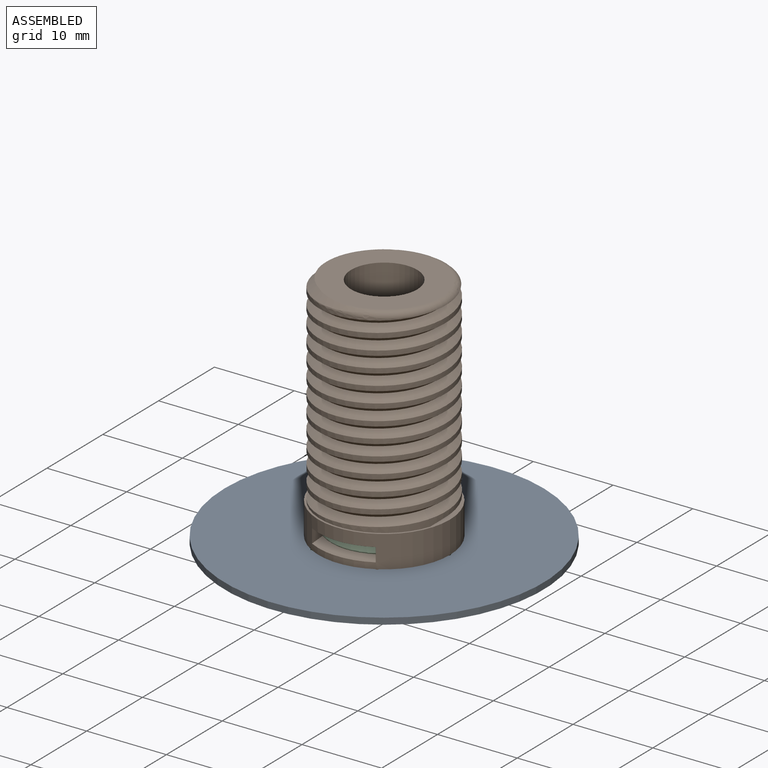
[diagram: assembled view]
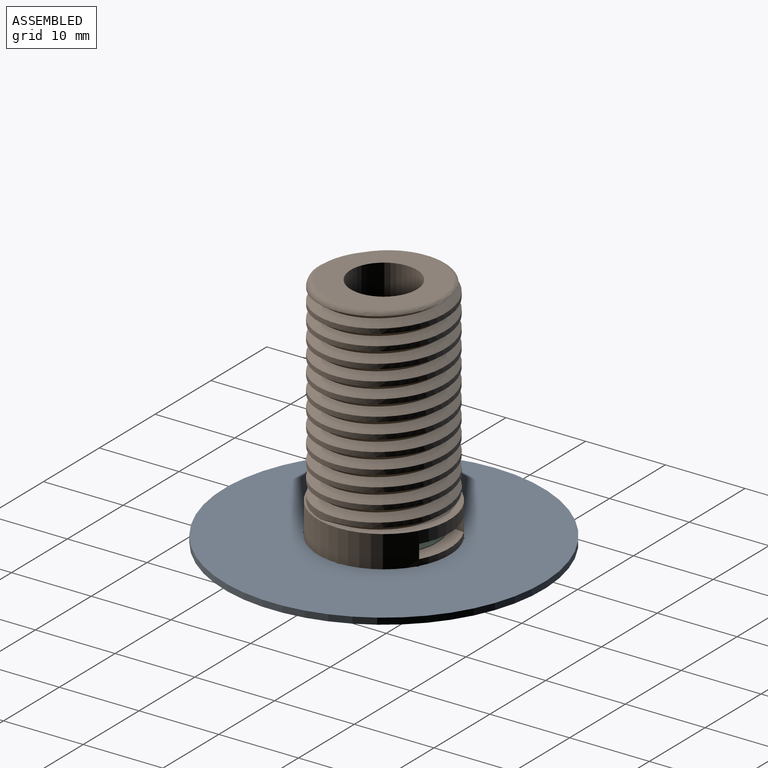
[diagram: assembled view, second angle]
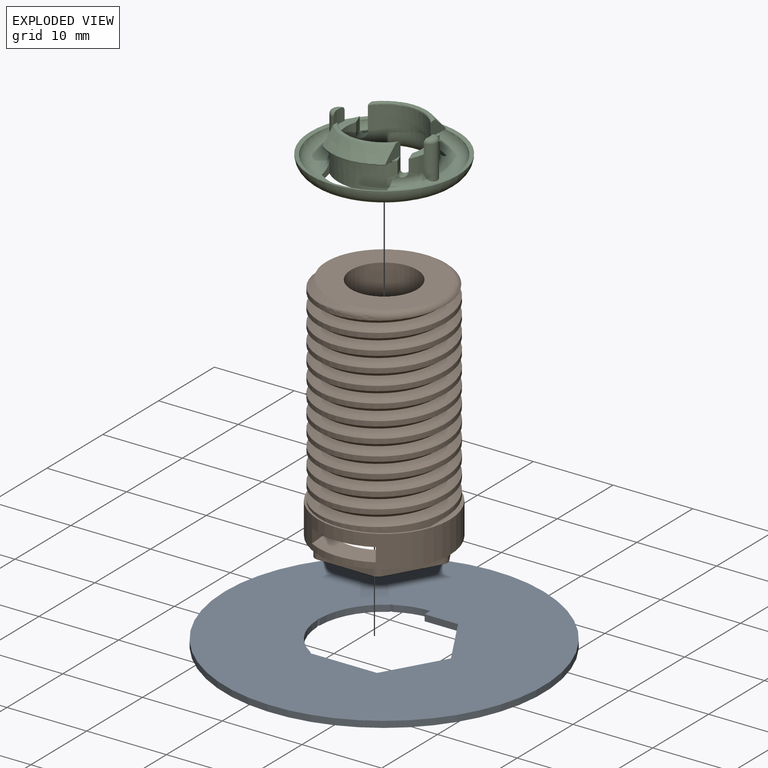
[diagram: exploded view]
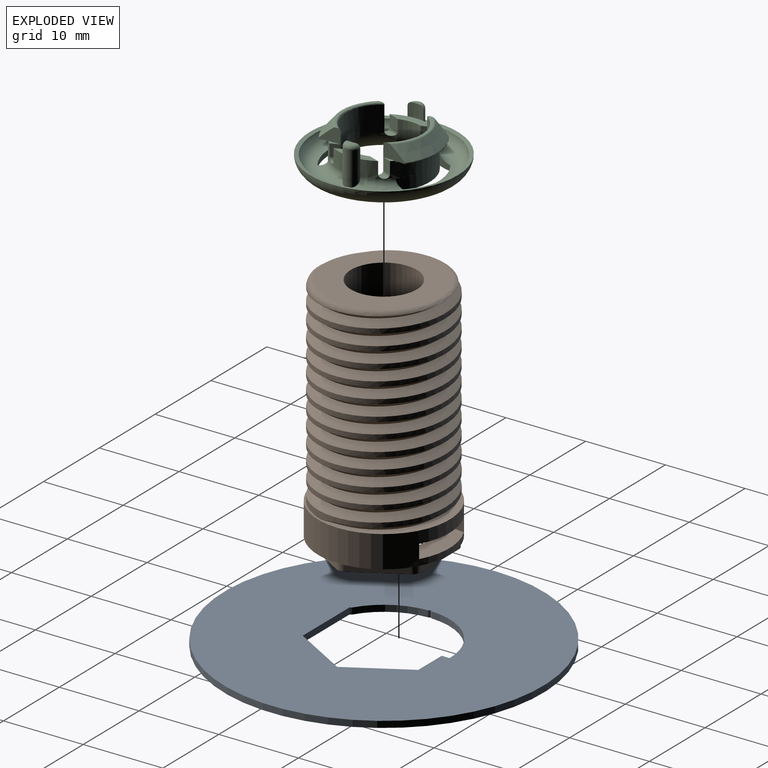
[diagram: exploded view, second angle]
ASSEMBLY  parts=3 mates=2
PART A: 16 faces, bbox 40x40x0.8 mm
  f0: plane 8.37x0.8mm, normal (0,1,0), area 6.7mm2, adj f1,f12,f14,f15
  f1: plane 7.25x4.19mm, normal (-0.87,0.5,0), area 6.7mm2, adj f0,f2,f14,f15
  f2: plane 7.25x4.19mm, normal (-0.87,-0.5,0), area 6.7mm2, adj f1,f3,f14,f15
  f3: plane 4.19x0.8mm, normal (0,-1,0), area 3.3mm2, adj f2,f4,f14,f15
  f4: plane 1x0.8mm, normal (-1,0,0), area 0.8mm2, adj f3,f5,f14,f15
  f5: cylinder r=8.25mm len=3.94mm, axis (0,0,1), area 3.3mm2, adj f4,f6,f14,f15
  f6: plane 0.8x0.25mm, normal (0,-1,0), area 0.2mm2, adj f5,f7,f14,f15
  f7: plane 0.8x0.22mm, normal (0.87,-0.5,0), area 0.2mm2, adj f6,f8,f14,f15
  f8: cylinder r=8.25mm len=6.82mm, axis (0,0,1), area 6.6mm2, adj f7,f9,f14,f15
  f9: plane 0.8x0.22mm, normal (0.87,-0.5,0), area 0.2mm2, adj f8,f10,f14,f15
  f10: plane 0.8x0.22mm, normal (0.87,0.5,0), area 0.2mm2, adj f9,f11,f14,f15
  f11: cylinder r=8.25mm len=6.82mm, axis (0,0,1), area 6.6mm2, adj f10,f12,f14,f15
  f12: plane 0.8x0.22mm, normal (0.87,0.5,0), area 0.2mm2, adj f0,f11,f14,f15
  f13: cylinder r=20mm len=40mm, axis (0,0,1), area 100.5mm2, adj f14,f15
  f14: plane 40x40mm, normal (0,0,-1), area 1061.3mm2, adj f0,f1,f2,f3,f4,f5,f6,f7
  f15: plane 40x40mm, normal (0,0,1), area 1061.3mm2, adj f0,f1,f2,f3,f4,f5,f6,f7
PART B: 48 faces, bbox 17.9x19.1x31.4 mm
  f0: cylinder r=8.25mm len=16.5mm, axis (0,0,-1), area 178.4mm2, adj f3,f11,f12,f13,f17,f18,f19,f22
  f1: plane 15.86x14mm, normal (0,0,-1), area 62.5mm2, adj f6,f8,f9,f10,f14,f15,f16,f20
  f2: cylinder r=8mm len=24.2mm, axis (0,0,1), area 335.8mm2, adj f25,f26,f27,f46,f47
  f3: plane 16.5x16.5mm, normal (0,0,-1), area 44.4mm2, adj f0,f9,f10,f15,f16,f21,f23,f28
  f4: cylinder r=4.15mm len=26mm, axis (0,0,1), area 678mm2, adj f5,f7
  f5: plane 14.49x14.49mm, normal (0,0,1), area 108.1mm2, adj f4,f26,f27,f46
  f6: cylinder r=1mm len=3.5mm, axis (0,0,-1), area 8mm2, adj f1,f33,f35,f41
  f7: plane 12.32x10.5mm, normal (0,0,-1), area 34.7mm2, adj f4,f38,f39,f40,f41,f42,f43,f44
  f8: cylinder r=5.75mm len=11.08mm, axis (0,0,1), area 39mm2, adj f1,f12,f13,f22,f30,f35,f45
  f9: plane 6.93x1mm, normal (0,1,0), area 6.9mm2, adj f1,f3,f28,f36
  f10: plane 6x3.46mm, normal (0.87,0.5,0), area 6.9mm2, adj f1,f3,f36,f37
  f11: plane 8x4.12mm, normal (0,0,-1), area 21.4mm2, adj f0,f12,f22,f45
  f12: plane 3.43x2.08mm, normal (-1,0,0), area 5mm2, adj f0,f8,f11,f13
  f13: cone r=6.84mm half-angle=84.7deg, axis (0,0,-1), area 22.1mm2, adj f0,f8,f12,f22
  f14: cylinder r=5.75mm len=11.08mm, axis (0,0,1), area 39mm2, adj f1,f18,f19,f24,f31,f33,f38
  f15: plane 6.93x1mm, normal (0,-1,0), area 6.9mm2, adj f1,f3,f32,f34
  f16: plane 6x3.46mm, normal (0.87,-0.5,0), area 6.9mm2, adj f1,f3,f34,f37
  f17: plane 8x4.12mm, normal (0,0,-1), area 21.4mm2, adj f0,f18,f24,f38
  f18: plane 3.43x2.08mm, normal (-1,0,0), area 5mm2, adj f0,f14,f17,f19
  f19: cone r=6.84mm half-angle=84.7deg, axis (0,0,-1), area 22.1mm2, adj f0,f14,f18,f24
  f20: cylinder r=1mm len=3.5mm, axis (0,0,-1), area 8mm2, adj f1,f30,f31,f42
  f21: plane 6x3.46mm, normal (-0.87,0.5,0), area 6.9mm2, adj f1,f3,f28,f29
  f22: plane 3.43x2.08mm, normal (1,0,0), area 5mm2, adj f0,f8,f11,f13
  f23: plane 6x3.46mm, normal (-0.87,-0.5,0), area 6.9mm2, adj f1,f3,f29,f32
  f24: plane 3.43x2.08mm, normal (1,0,0), area 5mm2, adj f0,f14,f17,f19
  f25: bspline ~13.17x4.5mm, area 0.9mm2, adj f2,f27,f47
  f26: bspline ~26.37x18.48mm, area 715.3mm2, adj f2,f5,f27,f46,f47
  f27: bspline ~26.03x18.48mm, area 712.5mm2, adj f2,f5,f25,f26,f46,f47
  f28: cylinder r=1mm len=1mm, axis (0,0,-1), area 1mm2, adj f1,f3,f9,f21
  f29: cylinder r=1mm len=1mm, axis (0,0,-1), area 1mm2, adj f1,f3,f21,f23
  f30: cylinder r=1mm len=3.5mm, axis (0,0,-1), area 3mm2, adj f1,f8,f20,f44
  f31: cylinder r=1mm len=3.5mm, axis (0,0,-1), area 3mm2, adj f1,f14,f20,f40
  f32: cylinder r=1mm len=1mm, axis (0,0,-1), area 1mm2, adj f1,f3,f15,f23
  f33: cylinder r=1mm len=3.5mm, axis (0,0,-1), area 3mm2, adj f1,f6,f14,f39
  f34: cylinder r=1mm len=1mm, axis (0,0,-1), area 1mm2, adj f1,f3,f15,f16
  f35: cylinder r=1mm len=3.5mm, axis (0,0,-1), area 3mm2, adj f1,f6,f8,f43
  f36: cylinder r=1mm len=1mm, axis (0,0,-1), area 1mm2, adj f1,f3,f9,f10
  f37: cylinder r=1mm len=1mm, axis (0,0,-1), area 1mm2, adj f1,f3,f10,f16
  f38: torus R=5.25mm, axis (0,0,-1), area 11.4mm2, adj f7,f14,f17,f39,f40
  f39: torus R=1.5mm, axis (0,0,-1), area 0.8mm2, adj f7,f33,f38,f41
  f40: torus R=1.5mm, axis (0,0,-1), area 0.8mm2, adj f7,f31,f38,f42
  f41: torus R=0.5mm, axis (0,0,-1), area 1.5mm2, adj f6,f7,f39,f43
  f42: torus R=0.5mm, axis (0,0,-1), area 1.5mm2, adj f7,f20,f40,f44
  f43: torus R=1.5mm, axis (0,0,-1), area 0.8mm2, adj f7,f35,f41,f45
  f44: torus R=1.5mm, axis (0,0,-1), area 0.8mm2, adj f7,f30,f42,f45
  f45: torus R=5.25mm, axis (0,0,-1), area 11.4mm2, adj f7,f8,f11,f43,f44
  f46: torus R=7.2mm, axis (0,0,1), area 28.8mm2, adj f2,f5,f26,f27
  f47: plane 17.12x17.12mm, normal (0,0,1), area 27.7mm2, adj f0,f2,f25,f26,f27
PART C: 79 faces, bbox 20.2x20.2x5.7 mm
  f0: torus R=7.18mm, axis (0,0,-1), area 146.7mm2, adj f3,f10,f20,f23,f24,f25,f27,f39
  f1: torus R=6.75mm, axis (0,0,-1), area 75mm2, adj f2,f6,f9,f18,f27,f28,f33,f37
  f2: torus R=7mm, axis (0,0,1), area 65.4mm2, adj f1,f15,f25,f27,f44,f59,f61,f72
  f3: torus R=6.75mm, axis (0,0,1), area 2mm2, adj f0,f5,f23,f26,f27,f42,f44
  f4: cylinder r=5.75mm len=2.25mm, axis (0,0,1), area 3.9mm2, adj f8,f17,f18,f20,f24
  f5: cylinder r=5.75mm len=9.27mm, axis (0,0,1), area 17.7mm2, adj f3,f7,f14,f16,f18,f31,f34,f35
  f6: cylinder r=4.75mm len=7.94mm, axis (0,0,1), area 30.6mm2, adj f1,f14,f16,f18,f34,f35,f37,f76
  f7: plane 1.52x0.4mm, normal (0,0,1), area 0.3mm2, adj f5,f14,f16
  f8: plane 5.59x1.22mm, normal (0,0,1), area 4.4mm2, adj f4,f9,f17,f21,f46,f55
  f9: cylinder r=4.75mm len=3.09mm, axis (0,0,1), area 5.1mm2, adj f1,f8,f17,f18,f55,f56
  f10: cone r=9.25mm half-angle=78.7deg, axis (0,0,1), area 28.3mm2, adj f0,f15
  f11: cone r=6.84mm half-angle=84.7deg, axis (0,0,-1), area 5.3mm2, adj f14,f29,f34,f78
  f12: cone r=5.25mm half-angle=40.6deg, axis (0,0,-1), area 18.2mm2, adj f14,f29,f34,f75
  f13: plane 7.84x2.14mm, normal (0,0,1), area 1.9mm2, adj f14,f34,f75,f76
  f14: plane 2.92x2.14mm, normal (1,0,0), area 3.3mm2, adj f5,f6,f7,f11,f12,f13,f29,f75
  f15: torus R=7.25mm, axis (0,0,-1), area 136.2mm2, adj f2,f10
  f16: plane 1.5x1.11mm, normal (0.94,-0.34,0), area 1.8mm2, adj f5,f6,f7,f18
  f17: plane 1.5x1.36mm, normal (-0.94,0.34,0), area 2.2mm2, adj f4,f8,f9,f18
  f18: cylinder r=0.5mm len=2.36mm, axis (-0.34,-0.94,0), area 2mm2, adj f1,f4,f5,f6,f9,f16,f17,f23
  f19: plane 0.99x0.43mm, normal (0,0,1), area 0.3mm2, adj f21,f22
  f20: cylinder r=1mm len=4.29mm, axis (0,0,1), area 12.7mm2, adj f0,f4,f21,f22,f24,f46,f58
  f21: cylinder r=5.75mm len=2mm, axis (0,0,1), area 3.2mm2, adj f8,f19,f20,f22
  f22: torus R=0.5mm, axis (0,0,1), area 1.9mm2, adj f19,f20,f21
  f23: bspline ~0.73x0.5mm, area 0.1mm2, adj f0,f3,f18,f24
  f24: torus R=6.75mm, axis (0,0,1), area 2mm2, adj f0,f4,f20,f23
  f25: cylinder r=6.84mm len=7.84mm, axis (0,0,1), area 5.5mm2, adj f0,f2,f27,f44
  f26: plane 7.84x1.54mm, normal (0,0,-1), area 0mm2, adj f3,f28
  f27: plane 1.91x1.51mm, normal (-1,0,0), area 1.2mm2, adj f0,f1,f2,f3,f25,f28
  f28: cylinder r=5.75mm len=7.84mm, axis (0,0,1), area 12.9mm2, adj f1,f26,f27,f44
  f29: torus R=6.6mm, axis (0,0,-1), area 2mm2, adj f11,f12,f14,f34
  f30: cylinder r=5.75mm len=2.25mm, axis (0,0,1), area 3.9mm2, adj f32,f36,f37,f39,f43
  f31: plane 1.52x0.4mm, normal (0,0,1), area 0.3mm2, adj f5,f34,f35
  f32: plane 5.59x1.22mm, normal (0,0,1), area 4.4mm2, adj f30,f33,f36,f40,f64,f68
  f33: cylinder r=4.75mm len=3.09mm, axis (0,0,1), area 5.1mm2, adj f1,f32,f36,f37,f68,f69
  f34: plane 2.92x2.14mm, normal (-1,0,0), area 3.3mm2, adj f5,f6,f11,f12,f13,f29,f31,f75
  f35: plane 1.5x1.11mm, normal (-0.94,-0.34,0), area 1.8mm2, adj f5,f6,f31,f37
  f36: plane 1.5x1.36mm, normal (0.94,0.34,0), area 2.2mm2, adj f30,f32,f33,f37
  f37: cylinder r=0.5mm len=2.36mm, axis (0.34,-0.94,0), area 2mm2, adj f1,f5,f6,f30,f33,f35,f36,f42
  f38: plane 0.99x0.43mm, normal (0,0,1), area 0.3mm2, adj f40,f41
  f39: cylinder r=1mm len=4.29mm, axis (0,0,1), area 12.5mm2, adj f0,f30,f40,f41,f43,f64,f71
  f40: cylinder r=5.75mm len=2mm, axis (0,0,1), area 3.2mm2, adj f32,f38,f39,f41
  f41: torus R=0.5mm, axis (0,0,1), area 1.9mm2, adj f38,f39,f40
  f42: bspline ~0.73x0.5mm, area 0.1mm2, adj f0,f3,f37,f43
  f43: torus R=6.75mm, axis (0,0,1), area 2mm2, adj f0,f30,f39,f42
  f44: plane 1.91x1.51mm, normal (1,0,0), area 1.2mm2, adj f0,f1,f2,f3,f25,f28
  f45: torus R=6.75mm, axis (0,0,1), area 2mm2, adj f0,f47,f57,f60,f61,f70,f72
  f46: cylinder r=5.75mm len=2.25mm, axis (0,0,1), area 3.9mm2, adj f8,f20,f55,f56,f58
  f47: cylinder r=5.75mm len=9.27mm, axis (0,0,1), area 17.7mm2, adj f45,f49,f53,f54,f56,f65,f66,f67
  f48: cylinder r=4.75mm len=7.94mm, axis (0,0,1), area 30.6mm2, adj f1,f53,f54,f56,f66,f67,f69,f74
  f49: plane 1.52x0.4mm, normal (0,0,1), area 0.3mm2, adj f47,f53,f54
  f50: cone r=6.84mm half-angle=84.7deg, axis (0,0,-1), area 5.3mm2, adj f53,f63,f66,f77
  f51: cone r=5.25mm half-angle=40.6deg, axis (0,0,-1), area 18.2mm2, adj f53,f63,f66,f73
  f52: plane 7.84x2.14mm, normal (0,0,1), area 1.9mm2, adj f53,f66,f73,f74
  f53: plane 2.92x2.14mm, normal (1,0,0), area 3.3mm2, adj f47,f48,f49,f50,f51,f52,f63,f73
  f54: plane 1.5x1.11mm, normal (0.94,0.34,0), area 1.8mm2, adj f47,f48,f49,f56
  f55: plane 1.5x1.36mm, normal (-0.94,-0.34,0), area 2.2mm2, adj f8,f9,f46,f56
  f56: cylinder r=0.5mm len=2.36mm, axis (-0.34,0.94,0), area 2mm2, adj f1,f9,f46,f47,f48,f54,f55,f57
  f57: bspline ~0.73x0.5mm, area 0.1mm2, adj f0,f45,f56,f58
  f58: torus R=6.75mm, axis (0,0,1), area 2mm2, adj f0,f20,f46,f57
  f59: cylinder r=6.84mm len=7.84mm, axis (0,0,1), area 5.5mm2, adj f0,f2,f61,f72
  f60: plane 7.84x1.54mm, normal (0,0,-1), area 0mm2, adj f45,f62
  f61: plane 1.91x1.51mm, normal (-1,0,0), area 1.2mm2, adj f0,f1,f2,f45,f59,f62
  f62: cylinder r=5.75mm len=7.84mm, axis (0,0,1), area 12.9mm2, adj f1,f60,f61,f72
  f63: torus R=6.6mm, axis (0,0,-1), area 2mm2, adj f50,f51,f53,f66
  f64: cylinder r=5.75mm len=2.25mm, axis (0,0,1), area 3.9mm2, adj f32,f39,f68,f69,f71
  f65: plane 1.52x0.4mm, normal (0,0,1), area 0.3mm2, adj f47,f66,f67
  f66: plane 2.92x2.14mm, normal (-1,0,0), area 3.3mm2, adj f47,f48,f50,f51,f52,f63,f65,f73
  f67: plane 1.5x1.11mm, normal (-0.94,0.34,0), area 1.8mm2, adj f47,f48,f65,f69
  f68: plane 1.5x1.36mm, normal (0.94,-0.34,0), area 2.2mm2, adj f32,f33,f64,f69
  f69: cylinder r=0.5mm len=2.36mm, axis (0.34,0.94,0), area 2mm2, adj f1,f33,f47,f48,f64,f67,f68,f70
  f70: bspline ~0.73x0.5mm, area 0.1mm2, adj f0,f45,f69,f71
  f71: torus R=6.75mm, axis (0,0,1), area 2mm2, adj f0,f39,f64,f70
  f72: plane 1.91x1.51mm, normal (1,0,0), area 1.2mm2, adj f0,f1,f2,f45,f59,f62
  f73: torus R=5.16mm, axis (0,0,1), area 1.5mm2, adj f51,f52,f53,f66
  f74: torus R=4.95mm, axis (0,0,1), area 2.9mm2, adj f48,f52,f53,f66
  f75: torus R=5.16mm, axis (0,0,1), area 1.5mm2, adj f12,f13,f14,f34
  f76: torus R=4.95mm, axis (0,0,1), area 2.9mm2, adj f6,f13,f14,f34
  f77: torus R=5.95mm, axis (0,0,-1), area 2.8mm2, adj f47,f50,f53,f66
  f78: torus R=5.95mm, axis (0,0,1), area 2.8mm2, adj f5,f11,f14,f34
PLACE A t=(-5.63,2.77,-3.35)mm
PLACE B t=(-5.63,2.77,-3.35)mm fixed
PLACE C t=(-5.63,2.77,-3.35)mm
MATE fastened B.f2 <-> A.f5  axis (0,0,-1) through (-5.63,2.77,0.65)mm
MATE slider B.f2 <-> C.f0  axis (0,0,1) through (-5.63,2.77,-3.35)mm
